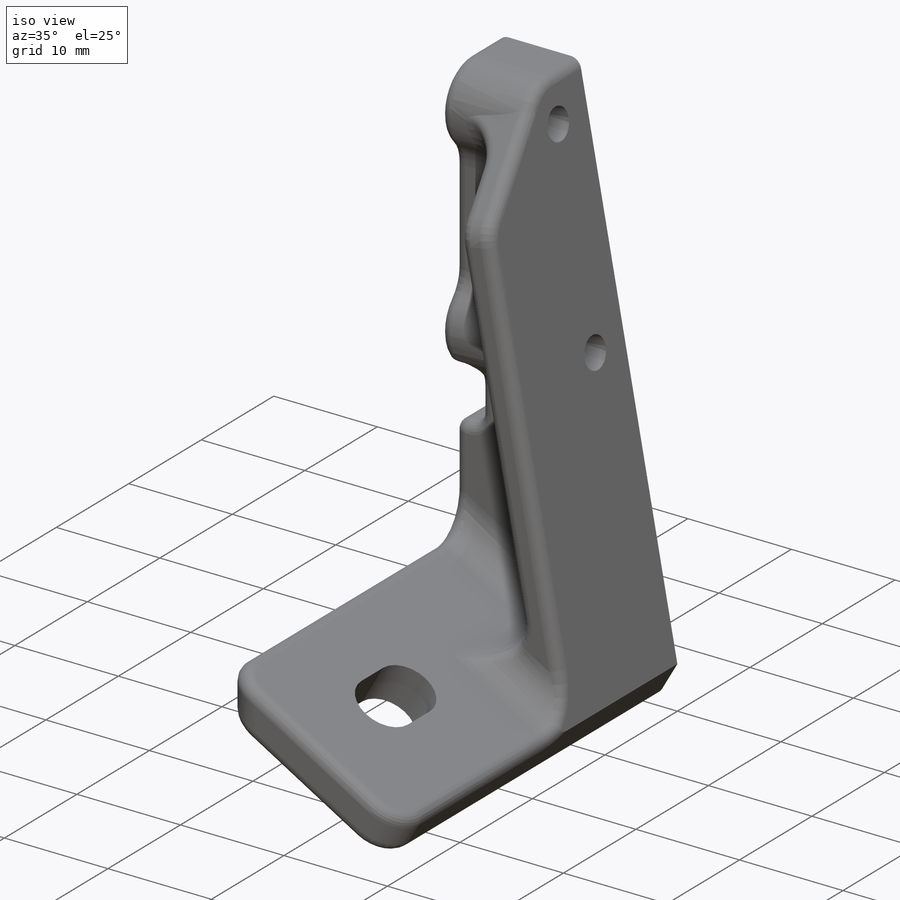
[diagram: iso view]
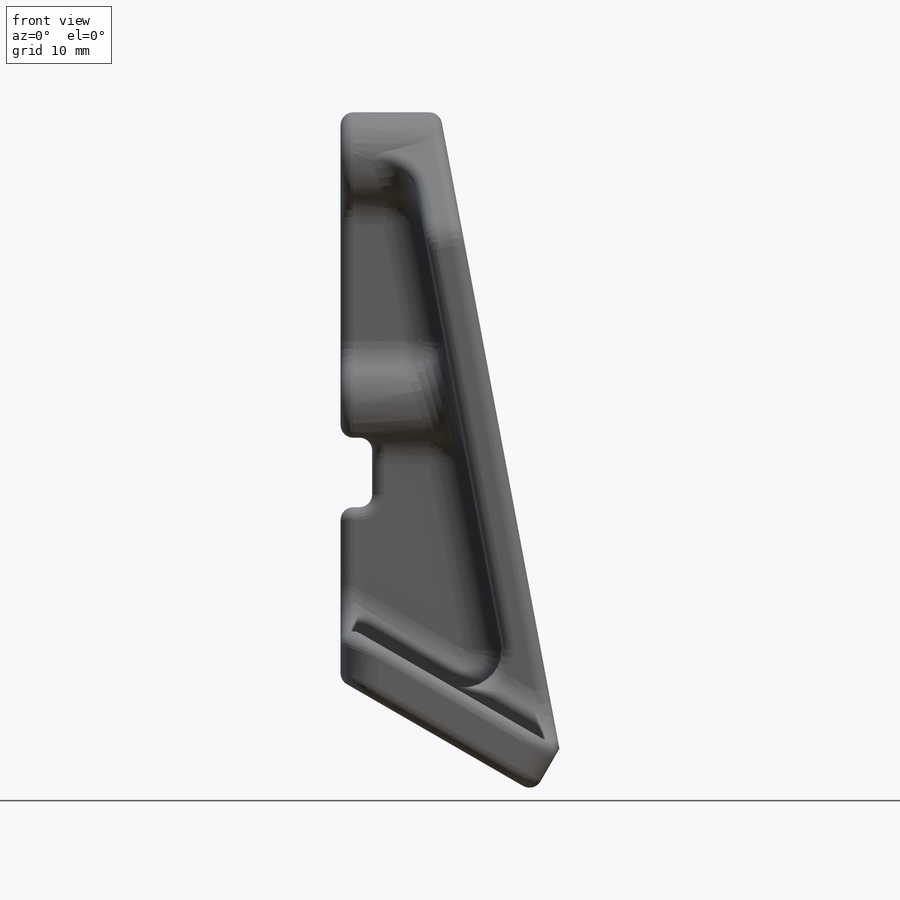
[diagram: front view]
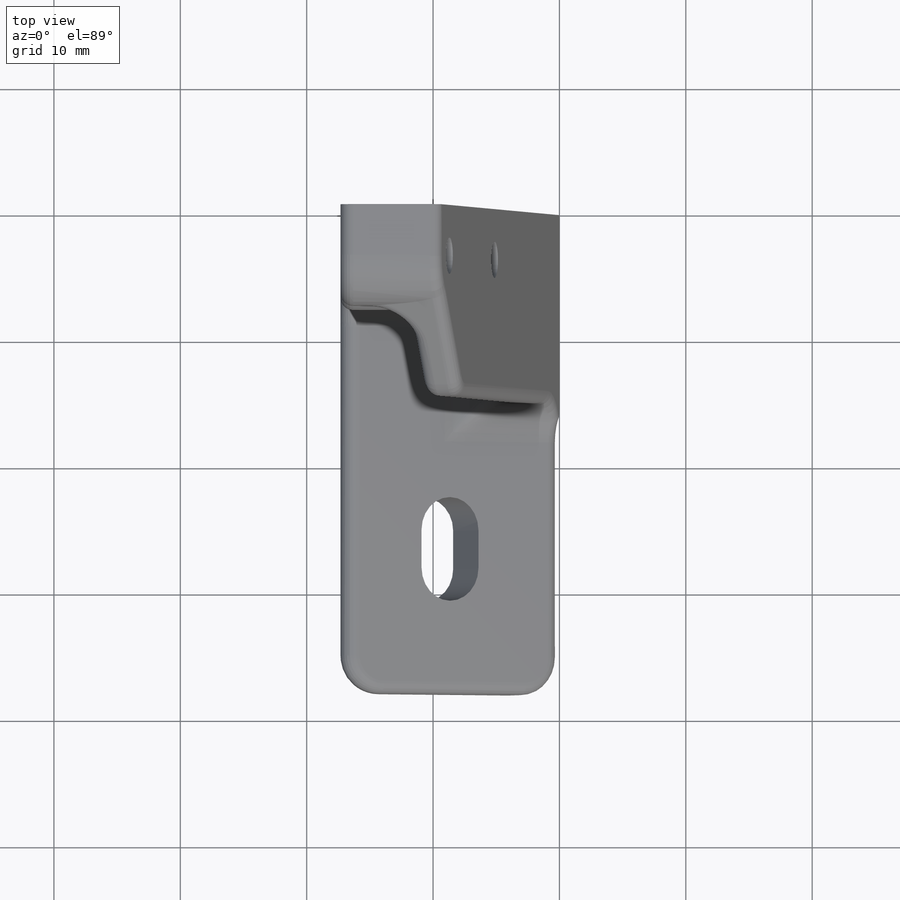
[diagram: top view]
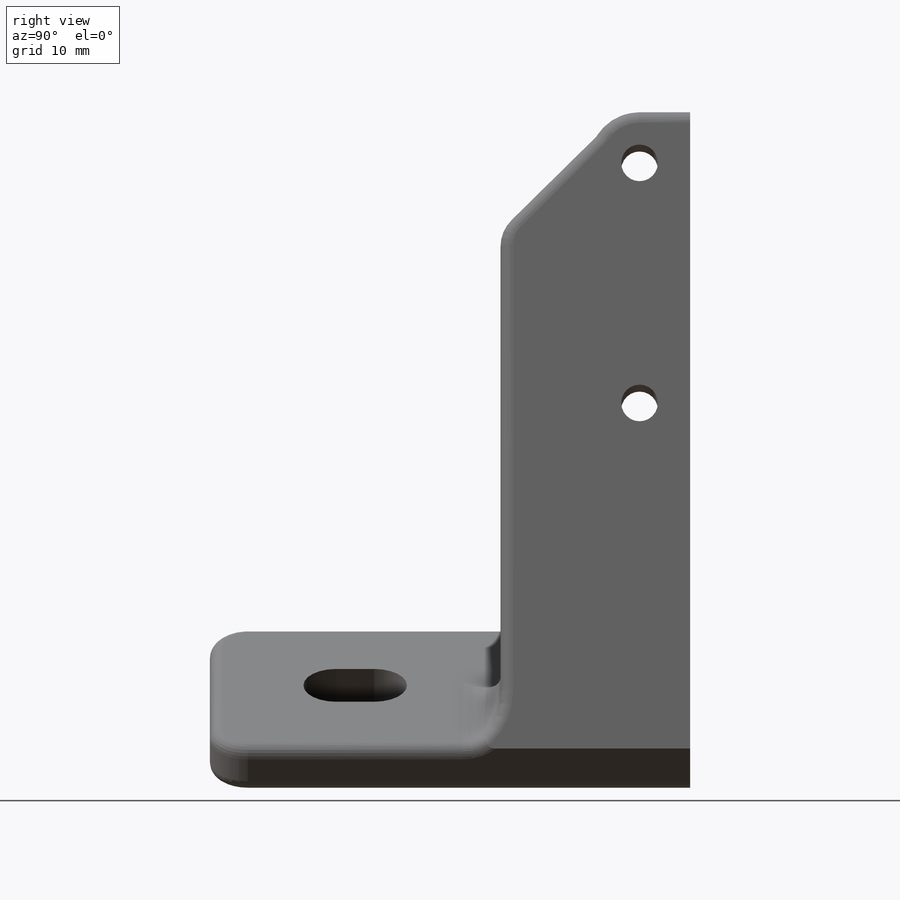
[diagram: right view]
SOLIDWORKS PART (.sldprt)
format: sldprt  version: not decoded by parser v0  size: 528,896 bytes
history: native  units: mm
features: sketch x8, extrude x4, cut_extrude x4, fillet x3, material x1 (+13 scaffold rows collapsed)
feature tree (33):
  scaffold x13  (default folders/planes/origin — collapsed)
  material  "Material <not specified>"
  sketch  "Sketch2"  dims[c1.D7=1.0mm c1.D1=39.6mm c1.D2=20.0mm c1.D3=8.0mm c1.D4=25.0mm c1.D5=4.0mm c2.D2=20.0mm c2.D1=4.0mm c2.D5=39.6mm c3.D1=2.5mm c3.D2=20.0mm c3.D6=30.5mm c3.D5=39.6mm c3.D8=8.1mm c4.D8=120.0deg]
  extrude  "Boss-Extrude1"  Depth=6mm
  sketch  "Sketch3"  dims[c1.D1=~7.01398mm c1.D2=~7.01398mm c1.D3=2.9mm c1.D4=8.0mm c1.D5=2.9mm c2.D1=19.0mm c2.D2=3.25mm c2.D5=3.0mm]
  extrude  "Boss-Extrude2"  [1 undecoded]
  cut_extrude  "Cut-Extrude2"  [1 undecoded]
  sketch  "Sketch3<4>"
  sketch  "Sketch5"  dims[D1=0.0mm]
  cut_extrude  "Cut-Extrude4"  [1 undecoded]
  sketch  "Sketch7"  dims[c1.D1=2.7853mm c2.D1=135.0deg c2.D2=15.0mm]
  extrude  "Boss-Extrude3"  Depth=3mm
  sketch  "Sketch8"
  cut_extrude  "Cut-Extrude5"  [1 undecoded]
  sketch  "Sketch11"  dims[c1.D1=2.6mm c1.D2=2.5mm c1.D3=2.5mm c1.D4=2.5mm c2.D2=3.0mm c2.D3=10.0mm c2.D4=10.0mm]
  extrude  "Boss-Extrude4"  Depth=4mm
  sketch  "Sketch12"
  cut_extrude  "Cut-Extrude6"  [1 undecoded]
  fillet  "Fillet1"  Radius=3mm
  fillet  "Fillet2"  Radius=3mm
  fillet  "Fillet3"  Radius=1mm
decode coverage: 11 of 19 modeling features carry decoded parameters
note: ~ marks probable driven/reference dimensions
note: 5 parameter values undecoded
summary: no parameter record found for 5 features
note: suppression state not decoded; provenance and decode notes live in map.json
